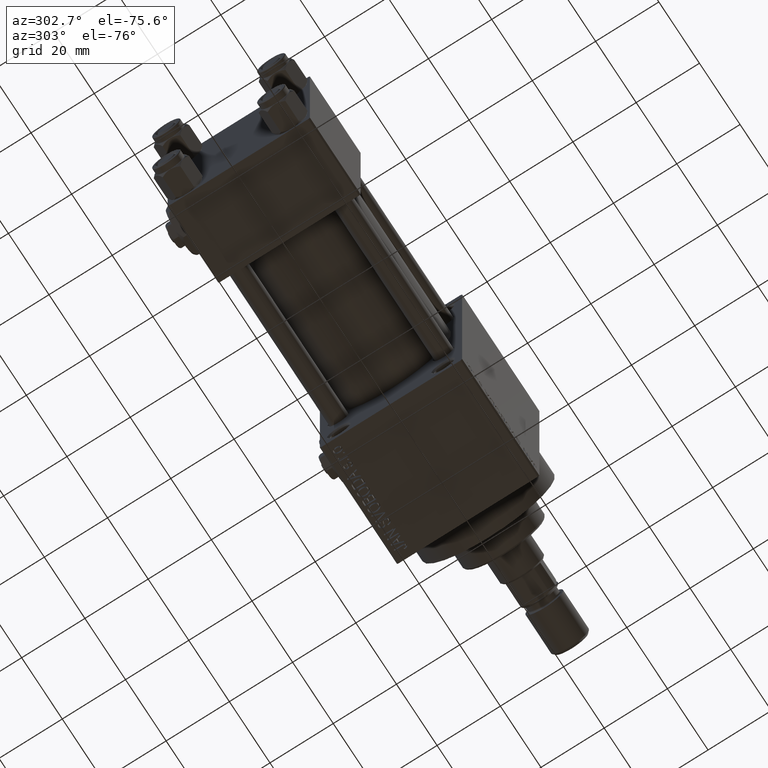
[diagram: clean part render]
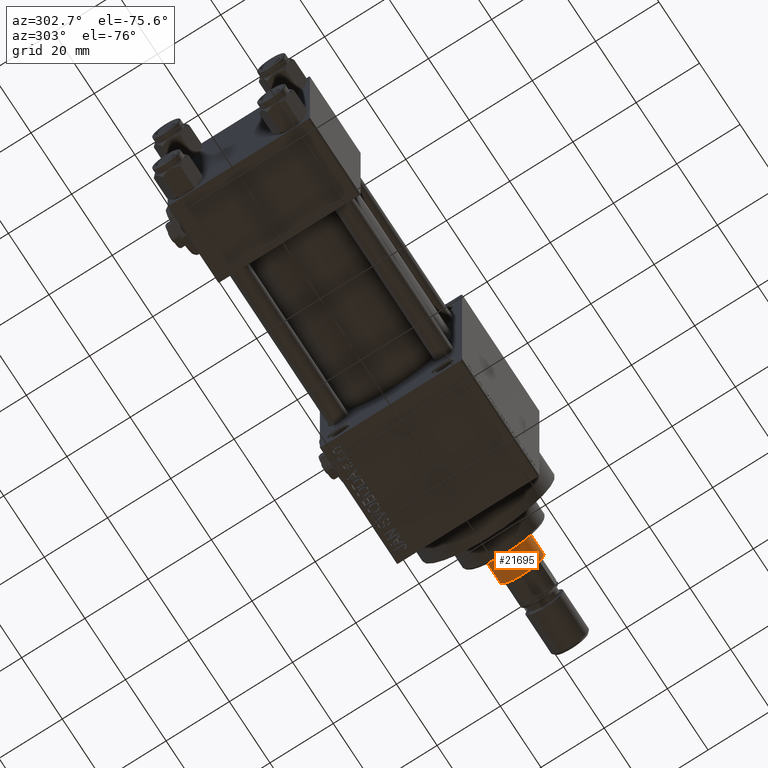
[diagram: same view with one face highlighted and labeled with its STEP entity id]
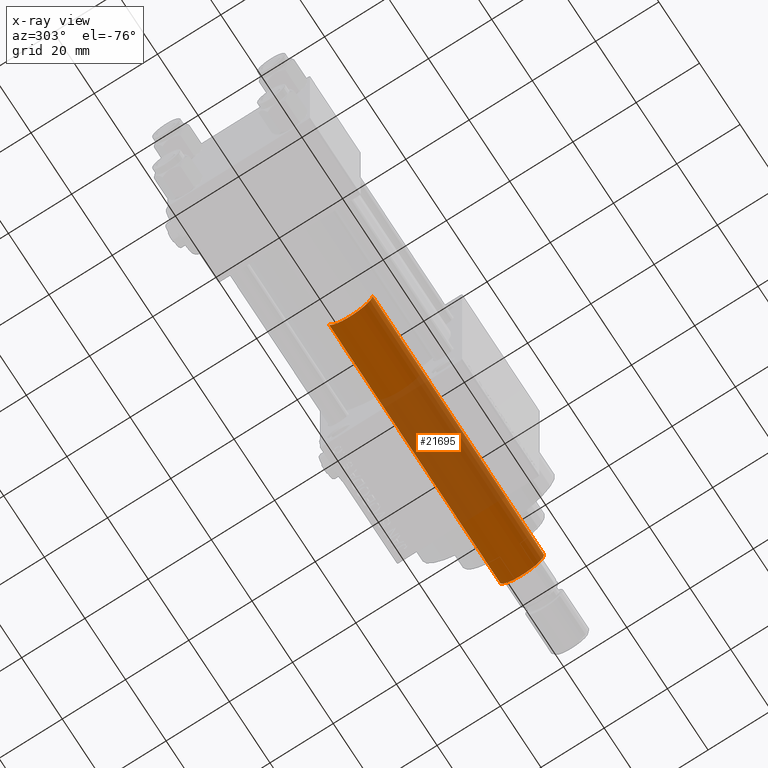
[diagram: x-ray of the same camera — body ghosted, the highlighted face saturated]
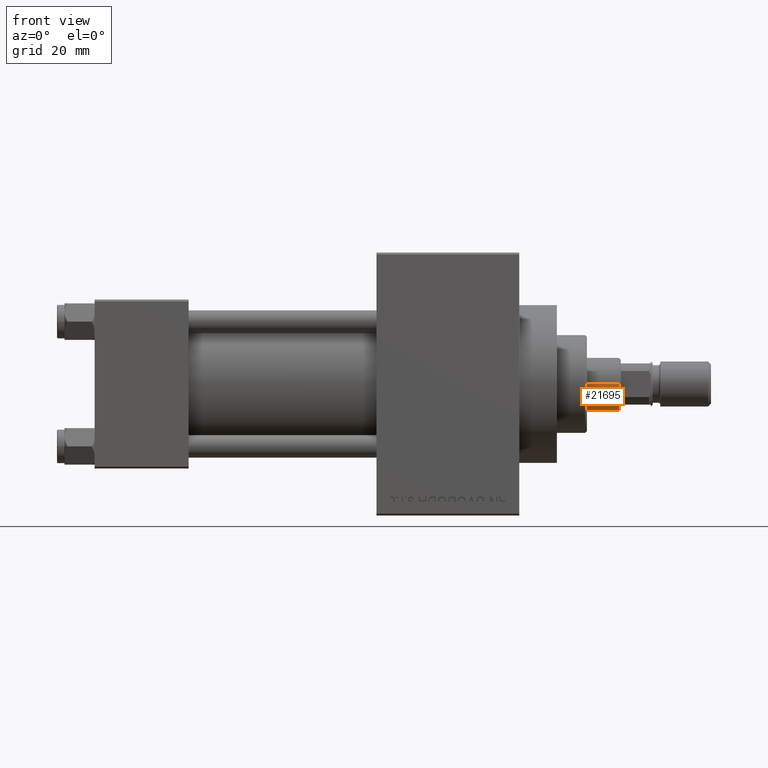
[diagram: same view with one face highlighted and labeled with its STEP entity id]
A machine part, auxiliary view. The second image highlights one B-rep face of the part: STEP entity #21695.
The next image is the same camera in x-ray: the body ghosted, the highlighted face saturated — about 47% of this face is hidden behind the body in this view.
A second angle (front view) of the same face is appended — the face is thin or edge-on in the first view.
In plain terms, the highlighted cylindrical surface (edge-blend (fillet) strip) has radius 7 mm, axis along (-1, 0, 0).
Its self-contained STEP definition (entity closure, byte-faithful):
#8 = EDGE_CURVE ( 'NONE', #26813, #47530, #31657, .T. ) ;
#107 = DIRECTION ( 'NONE',  ( -0.000000000000000000, -0.000000000000000000, -1.000000000000000000 ) ) ;
#1418 = EDGE_CURVE ( 'NONE', #47530, #23742, #25577, .T. ) ;
#2538 = CYLINDRICAL_SURFACE ( 'NONE', #29147, 7.000000000000000000 ) ;
#4756 = DIRECTION ( 'NONE',  ( 1.000000000000000000, 0.000000000000000000, 0.000000000000000000 ) ) ;
#5551 = FACE_OUTER_BOUND ( 'NONE', #25439, .T. ) ;
#5778 = CIRCLE ( 'NONE', #13814, 7.000000000000000000 ) ;
#8427 = ORIENTED_EDGE ( 'NONE', *, *, #8, .T. ) ;
#9825 = CARTESIAN_POINT ( 'NONE',  ( 0.000000000000000000, 0.000000000000000000, 115.0000000000000000 ) ) ;
#13814 = AXIS2_PLACEMENT_3D ( 'NONE', #39083, #31329, #4756 ) ;
#14101 = DIRECTION ( 'NONE',  ( -1.000000000000000000, 0.000000000000000000, 0.000000000000000000 ) ) ;
#14401 = CARTESIAN_POINT ( 'NONE',  ( 0.000000000000000000, 0.000000000000000000, 30.00000000000000000 ) ) ;
#20688 = ORIENTED_EDGE ( 'NONE', *, *, #21152, .F. ) ;
#21044 = CARTESIAN_POINT ( 'NONE',  ( -7.000000000000000000, 0.000000000000000000, 115.0000000000000000 ) ) ;
#21152 = EDGE_CURVE ( 'NONE', #42085, #23742, #24785, .T. ) ;
#21695 = ADVANCED_FACE ( 'NONE', ( #5551 ), #2538, .T. ) ;
#21911 = DIRECTION ( 'NONE',  ( 1.000000000000000000, 0.000000000000000000, 0.000000000000000000 ) ) ;
#23742 = VERTEX_POINT ( 'NONE', #24326 ) ;
#24326 = CARTESIAN_POINT ( 'NONE',  ( -7.000000000000000000, 0.000000000000000000, 30.00000000000000000 ) ) ;
#24596 = DIRECTION ( 'NONE',  ( -0.000000000000000000, -0.000000000000000000, -1.000000000000000000 ) ) ;
#24785 = LINE ( 'NONE', #21044, #25884 ) ;
#25166 = DIRECTION ( 'NONE',  ( 0.000000000000000000, 0.000000000000000000, 1.000000000000000000 ) ) ;
#25439 = EDGE_LOOP ( 'NONE', ( #36861, #8427, #36449, #20688 ) ) ;
#25577 = CIRCLE ( 'NONE', #31957, 7.000000000000000000 ) ;
#25884 = VECTOR ( 'NONE', #36307, 1000.000000000000000 ) ;
#26813 = VERTEX_POINT ( 'NONE', #49605 ) ;
#29147 = AXIS2_PLACEMENT_3D ( 'NONE', #9825, #24596, #14101 ) ;
#31329 = DIRECTION ( 'NONE',  ( 0.000000000000000000, 0.000000000000000000, -1.000000000000000000 ) ) ;
#31657 = LINE ( 'NONE', #34935, #49336 ) ;
#31957 = AXIS2_PLACEMENT_3D ( 'NONE', #14401, #25166, #21911 ) ;
#34935 = CARTESIAN_POINT ( 'NONE',  ( 7.000000000000000000, 8.572527594031473190E-16, 115.0000000000000000 ) ) ;
#36307 = DIRECTION ( 'NONE',  ( -0.000000000000000000, -0.000000000000000000, -1.000000000000000000 ) ) ;
#36449 = ORIENTED_EDGE ( 'NONE', *, *, #1418, .T. ) ;
#36861 = ORIENTED_EDGE ( 'NONE', *, *, #43631, .T. ) ;
#39083 = CARTESIAN_POINT ( 'NONE',  ( 0.000000000000000000, 0.000000000000000000, 114.4999999999999858 ) ) ;
#40936 = CARTESIAN_POINT ( 'NONE',  ( -7.000000000000000000, 0.000000000000000000, 114.4999999999999858 ) ) ;
#42085 = VERTEX_POINT ( 'NONE', #40936 ) ;
#43631 = EDGE_CURVE ( 'NONE', #42085, #26813, #5778, .T. ) ;
#46703 = CARTESIAN_POINT ( 'NONE',  ( 7.000000000000000000, 8.572527594031473190E-16, 30.00000000000000000 ) ) ;
#47530 = VERTEX_POINT ( 'NONE', #46703 ) ;
#49336 = VECTOR ( 'NONE', #107, 1000.000000000000000 ) ;
#49605 = CARTESIAN_POINT ( 'NONE',  ( 7.000000000000000000, 8.572527594031473190E-16, 114.4999999999999858 ) ) ;